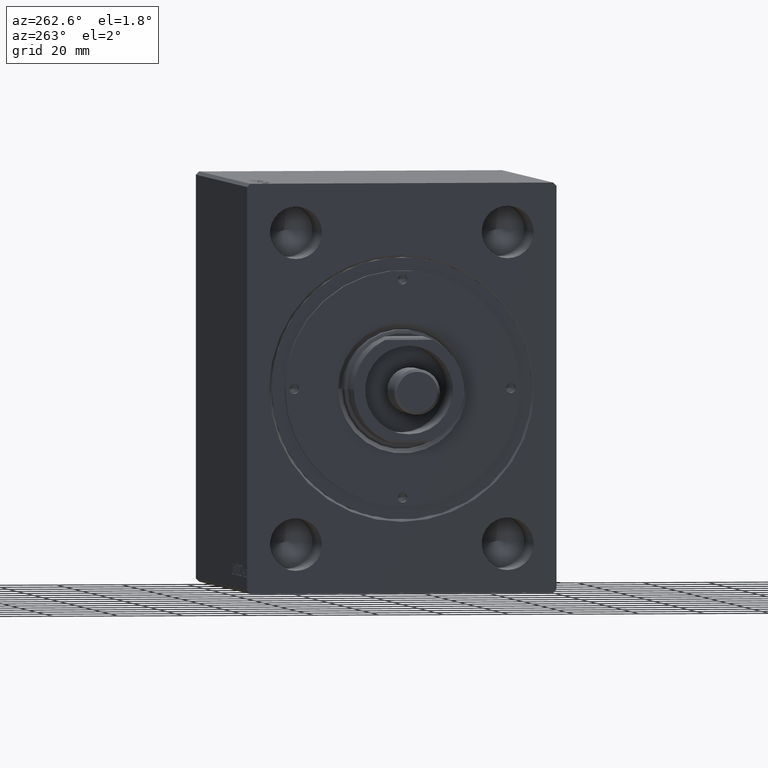
[diagram: clean part render]
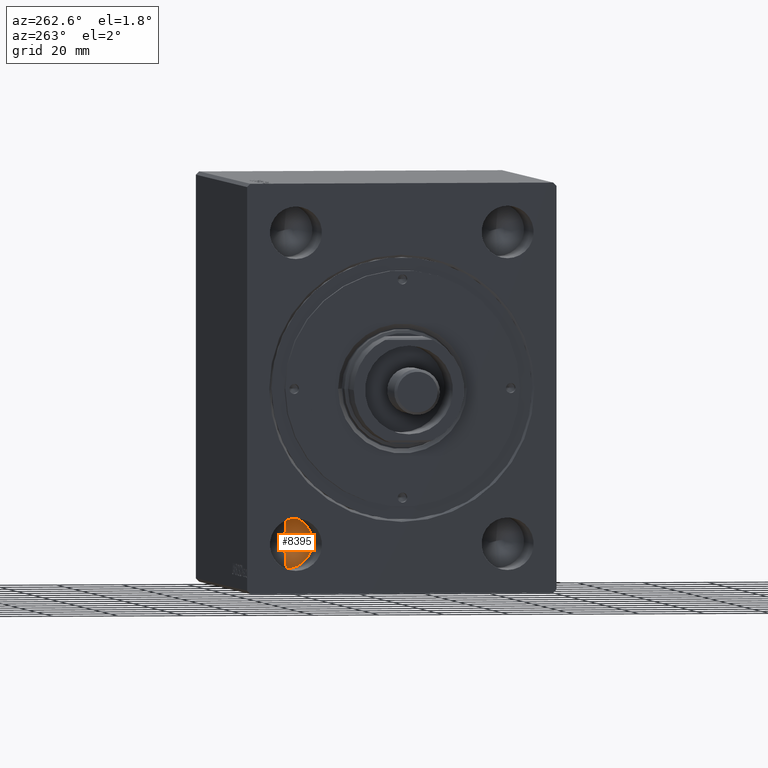
[diagram: same view with one face highlighted and labeled with its STEP entity id]
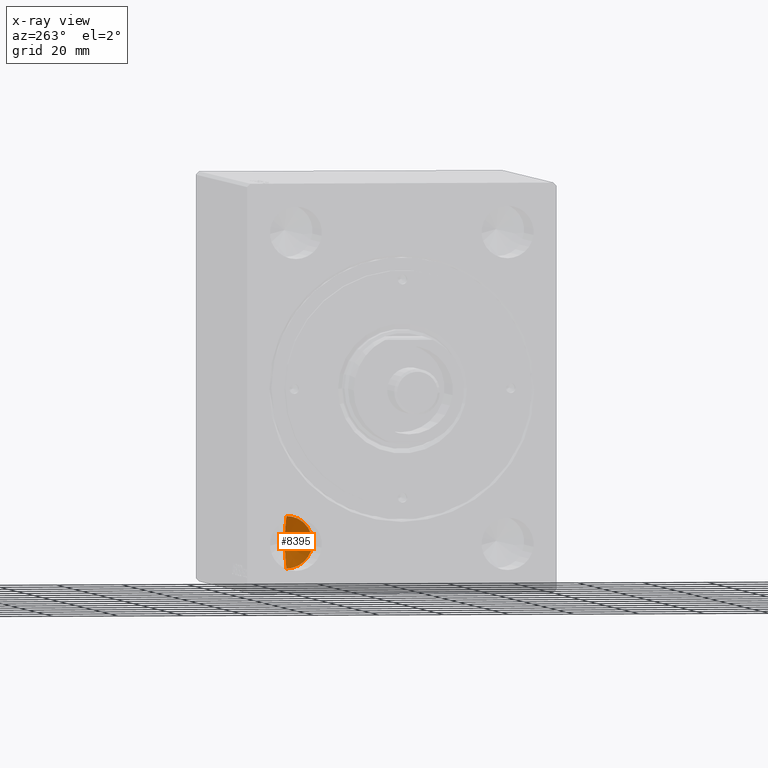
[diagram: x-ray of the same camera — body ghosted, the highlighted face saturated]
A machine part, auxiliary view. The second image highlights one B-rep face of the part: STEP entity #8395.
The next image is the same camera in x-ray: the body ghosted, the highlighted face saturated — about 0% of this face is hidden behind the body in this view.
In plain terms, the highlighted conical surface has half-angle 59 deg.
Its self-contained STEP definition (entity closure, byte-faithful):
#833 = VECTOR ( 'NONE', #1192, 1000.000000000000000 ) ;
#1192 = DIRECTION ( 'NONE',  ( -0.5150380749100550437, 1.049727191138617956E-16, -0.8571673007021117785 ) ) ;
#2157 = DIRECTION ( 'NONE',  ( -1.000000000000000000, -0.000000000000000000, -0.000000000000000000 ) ) ;
#2772 = ORIENTED_EDGE ( 'NONE', *, *, #39918, .F. ) ;
#3109 = ORIENTED_EDGE ( 'NONE', *, *, #30611, .T. ) ;
#3745 = DIRECTION ( 'NONE',  ( -0.5150380749100550437, 0.000000000000000000, 0.8571673007021117785 ) ) ;
#6614 = CONICAL_SURFACE ( 'NONE', #15239, 7.999999999999992895, 1.029744258676653423 ) ;
#7259 = DIRECTION ( 'NONE',  ( 0.000000000000000000, 0.000000000000000000, 1.000000000000000000 ) ) ;
#8220 = EDGE_CURVE ( 'NONE', #16816, #16225, #15936, .T. ) ;
#8255 = DIRECTION ( 'NONE',  ( 0.000000000000000000, 0.000000000000000000, 1.000000000000000000 ) ) ;
#8395 = ADVANCED_FACE ( 'NONE', ( #15091 ), #6614, .F. ) ;
#14436 = CARTESIAN_POINT ( 'NONE',  ( 22.67000000000000171, 32.50000000000000000, -47.50000000000000000 ) ) ;
#15091 = FACE_OUTER_BOUND ( 'NONE', #25434, .T. ) ;
#15239 = AXIS2_PLACEMENT_3D ( 'NONE', #14436, #28552, #7259 ) ;
#15936 = CIRCLE ( 'NONE', #17400, 7.999999999999992895 ) ;
#16225 = VERTEX_POINT ( 'NONE', #34923 ) ;
#16816 = VERTEX_POINT ( 'NONE', #41499 ) ;
#17400 = AXIS2_PLACEMENT_3D ( 'NONE', #25970, #2157, #8255 ) ;
#20444 = VECTOR ( 'NONE', #3745, 1000.000000000000000 ) ;
#23121 = VERTEX_POINT ( 'NONE', #32251 ) ;
#25434 = EDGE_LOOP ( 'NONE', ( #2772, #3109, #43232 ) ) ;
#25656 = CARTESIAN_POINT ( 'NONE',  ( 22.67000000000000171, 32.50000000000000000, -55.49999999999999289 ) ) ;
#25970 = CARTESIAN_POINT ( 'NONE',  ( 22.67000000000000171, 32.50000000000000000, -47.50000000000000000 ) ) ;
#28552 = DIRECTION ( 'NONE',  ( -1.000000000000000000, -0.000000000000000000, -0.000000000000000000 ) ) ;
#30611 = EDGE_CURVE ( 'NONE', #23121, #16816, #42685, .T. ) ;
#32251 = CARTESIAN_POINT ( 'NONE',  ( 27.47688495222049099, 32.49999999999999289, -47.50000000000000000 ) ) ;
#33582 = CARTESIAN_POINT ( 'NONE',  ( 22.67000000000000171, 32.50000000000000000, -39.50000000000000711 ) ) ;
#34923 = CARTESIAN_POINT ( 'NONE',  ( 22.67000000000000171, 32.50000000000000000, -39.50000000000000711 ) ) ;
#39918 = EDGE_CURVE ( 'NONE', #23121, #16225, #41206, .T. ) ;
#41206 = LINE ( 'NONE', #33582, #20444 ) ;
#41499 = CARTESIAN_POINT ( 'NONE',  ( 22.67000000000000171, 32.50000000000000000, -55.49999999999999289 ) ) ;
#42685 = LINE ( 'NONE', #25656, #833 ) ;
#43232 = ORIENTED_EDGE ( 'NONE', *, *, #8220, .T. ) ;